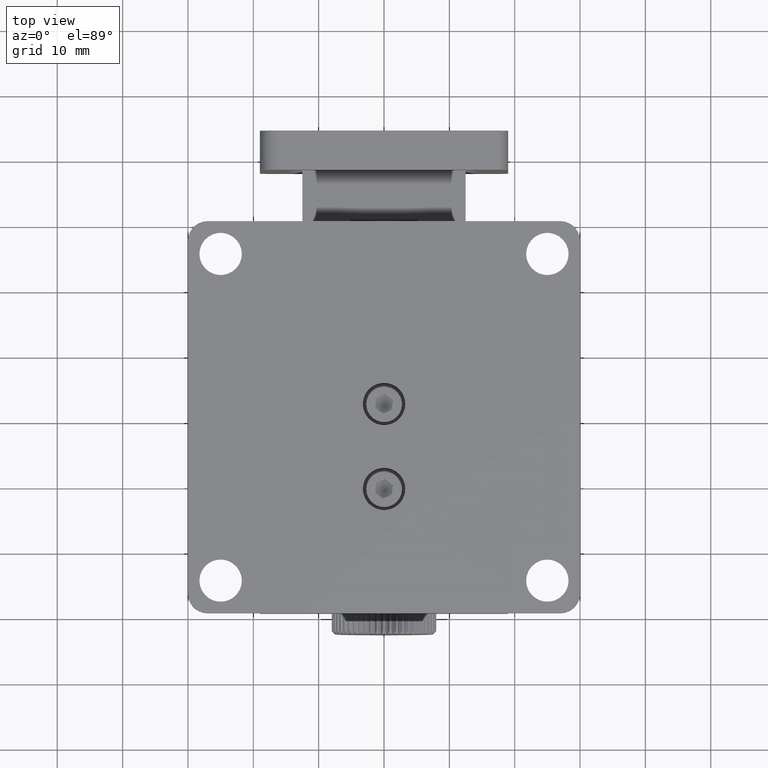
[diagram: clean part render]
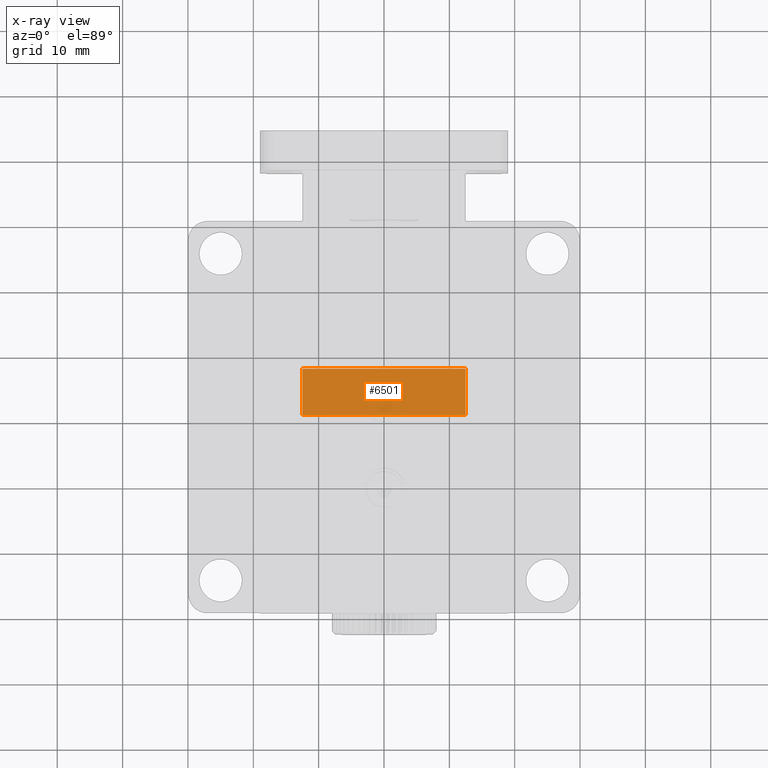
[diagram: x-ray — body ghosted, one internal face saturated and labeled with its STEP entity id]
A machine part, top view, then the same camera in x-ray: the body is ghosted and one INTERNAL B-rep face — a face not visible from any outside direction — is saturated and labeled: STEP entity #6501.
In plain terms, the highlighted planar face has unit normal (0, -0, 1).
Its self-contained STEP definition (entity closure, byte-faithful):
#894 = EDGE_CURVE ( 'NONE', #19985, #24548, #32210, .T. ) ;
#2813 = LINE ( 'NONE', #35174, #3253 ) ;
#3253 = VECTOR ( 'NONE', #20496, 1000.000000000000000 ) ;
#3343 = ORIENTED_EDGE ( 'NONE', *, *, #894, .F. ) ;
#4870 = VECTOR ( 'NONE', #22904, 1000.000000000000000 ) ;
#6501 = ADVANCED_FACE ( 'NONE', ( #10076 ), #20730, .F. ) ;
#6807 = EDGE_CURVE ( 'NONE', #38758, #26037, #29731, .T. ) ;
#7766 = EDGE_CURVE ( 'NONE', #26037, #24548, #15221, .T. ) ;
#10076 = FACE_OUTER_BOUND ( 'NONE', #27051, .T. ) ;
#11613 = DIRECTION ( 'NONE',  ( 9.429617762716716100E-017, -2.251089717528795600E-016, 1.000000000000000000 ) ) ;
#11824 = CARTESIAN_POINT ( 'NONE',  ( -12.50000000000000200, 0.9019237886466537900, -29.00000000000003600 ) ) ;
#13873 = DIRECTION ( 'NONE',  ( 1.000000000000000000, 1.413441680417780400E-016, -9.429617762716725900E-017 ) ) ;
#15221 = LINE ( 'NONE', #26732, #22240 ) ;
#15611 = CARTESIAN_POINT ( 'NONE',  ( 12.50000000000000500, 0.9019237886466573400, -29.00000000000000400 ) ) ;
#17284 = CARTESIAN_POINT ( 'NONE',  ( -12.50000000000000400, 7.999999999999989300, -28.99999999999999600 ) ) ;
#19985 = VERTEX_POINT ( 'NONE', #11824 ) ;
#20496 = DIRECTION ( 'NONE',  ( 1.413441680417779700E-016, -1.000000000000000000, -2.251089717528795600E-016 ) ) ;
#20730 = PLANE ( 'NONE',  #28708 ) ;
#21154 = ORIENTED_EDGE ( 'NONE', *, *, #6807, .T. ) ;
#21637 = CARTESIAN_POINT ( 'NONE',  ( 12.50000000000000400, 7.999999999999992900, -29.00000000000003600 ) ) ;
#22240 = VECTOR ( 'NONE', #26865, 1000.000000000000000 ) ;
#22803 = CARTESIAN_POINT ( 'NONE',  ( -12.50000000000000200, 0.9019237886466537900, -29.00000000000003600 ) ) ;
#22898 = VECTOR ( 'NONE', #13873, 1000.000000000000000 ) ;
#22904 = DIRECTION ( 'NONE',  ( 1.000000000000000000, 1.413441680417780400E-016, -9.429617762716725900E-017 ) ) ;
#23122 = EDGE_CURVE ( 'NONE', #38758, #19985, #2813, .T. ) ;
#23728 = CARTESIAN_POINT ( 'NONE',  ( -12.50000000000000400, 7.999999999999989300, -28.99999999999999600 ) ) ;
#24548 = VERTEX_POINT ( 'NONE', #15611 ) ;
#26037 = VERTEX_POINT ( 'NONE', #21637 ) ;
#26586 = ORIENTED_EDGE ( 'NONE', *, *, #7766, .T. ) ;
#26732 = CARTESIAN_POINT ( 'NONE',  ( 12.50000000000000400, 7.999999999999992900, -29.00000000000003600 ) ) ;
#26865 = DIRECTION ( 'NONE',  ( 1.413441680417779700E-016, -1.000000000000000000, -2.251089717528795600E-016 ) ) ;
#27051 = EDGE_LOOP ( 'NONE', ( #26586, #3343, #30120, #21154 ) ) ;
#28708 = AXIS2_PLACEMENT_3D ( 'NONE', #23728, #11613, #35803 ) ;
#29731 = LINE ( 'NONE', #17284, #4870 ) ;
#30120 = ORIENTED_EDGE ( 'NONE', *, *, #23122, .F. ) ;
#32210 = LINE ( 'NONE', #22803, #22898 ) ;
#34687 = CARTESIAN_POINT ( 'NONE',  ( -12.50000000000000000, 7.999999999999989300, -28.99999999999999600 ) ) ;
#35174 = CARTESIAN_POINT ( 'NONE',  ( -12.50000000000000400, 7.999999999999989300, -28.99999999999999600 ) ) ;
#35803 = DIRECTION ( 'NONE',  ( -1.413441680417779700E-016, 1.000000000000000000, 2.251089717528795600E-016 ) ) ;
#38758 = VERTEX_POINT ( 'NONE', #34687 ) ;